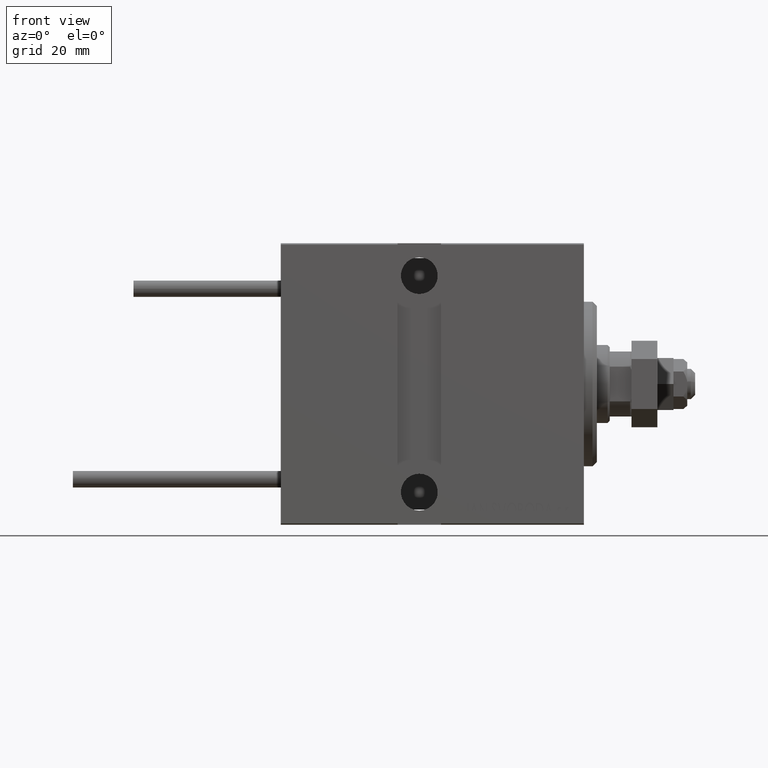
[diagram: clean part render]
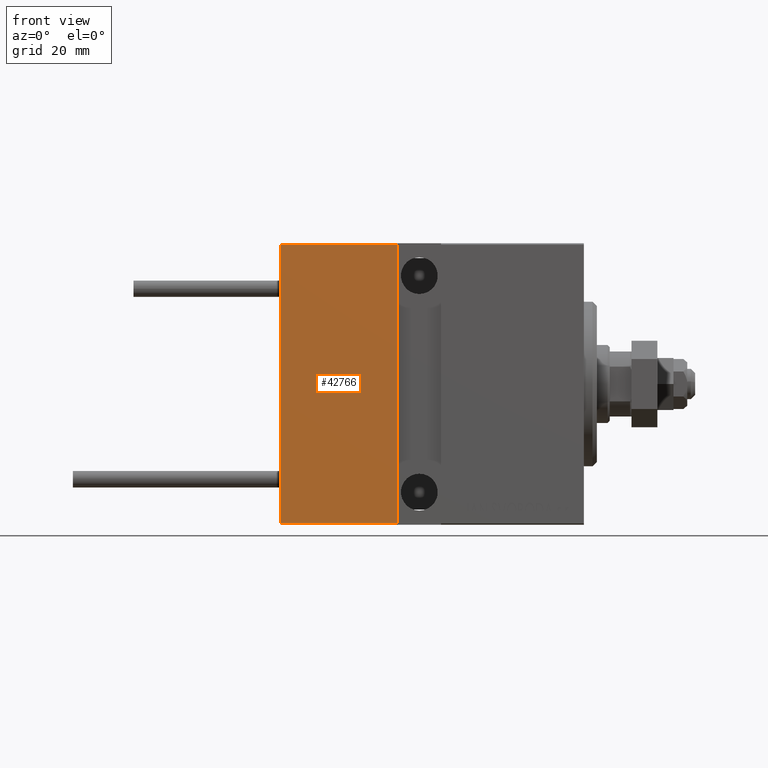
[diagram: same view with one face highlighted and labeled with its STEP entity id]
A machine part, front view. The second image highlights one B-rep face of the part: STEP entity #42766.
In plain terms, the highlighted planar face has unit normal (-0, 1, -0).
Its self-contained STEP definition (entity closure, byte-faithful):
#339 = LINE ( 'NONE', #38980, #1915 ) ;
#1082 = CARTESIAN_POINT ( 'NONE',  ( 43.00000000000000000, 22.50000000000000000, -32.19999999999999574 ) ) ;
#1087 = DIRECTION ( 'NONE',  ( -1.067522139062651164E-16, -0.000000000000000000, -1.000000000000000000 ) ) ;
#1915 = VECTOR ( 'NONE', #1087, 1000.000000000000000 ) ;
#1971 = CARTESIAN_POINT ( 'NONE',  ( 70.00000000000000000, 22.49999999999999645, 32.20000000000000284 ) ) ;
#2593 = VERTEX_POINT ( 'NONE', #36283 ) ;
#4032 = EDGE_CURVE ( 'NONE', #49351, #11637, #48903, .T. ) ;
#6252 = VECTOR ( 'NONE', #44382, 1000.000000000000000 ) ;
#6742 = LINE ( 'NONE', #1971, #6252 ) ;
#7818 = ORIENTED_EDGE ( 'NONE', *, *, #35333, .F. ) ;
#8009 = CARTESIAN_POINT ( 'NONE',  ( 70.00000000000000000, 22.50000000000000355, -32.19999999999999574 ) ) ;
#9793 = DIRECTION ( 'NONE',  ( 0.000000000000000000, -1.000000000000000000, -1.067522139062650425E-16 ) ) ;
#10392 = ORIENTED_EDGE ( 'NONE', *, *, #46942, .T. ) ;
#11637 = VERTEX_POINT ( 'NONE', #1082 ) ;
#12680 = ORIENTED_EDGE ( 'NONE', *, *, #4032, .T. ) ;
#13906 = EDGE_LOOP ( 'NONE', ( #7818, #12680, #40809, #10392 ) ) ;
#14565 = CARTESIAN_POINT ( 'NONE',  ( 70.00000000000000000, 22.50000000000000355, -32.50000000000000000 ) ) ;
#17373 = CARTESIAN_POINT ( 'NONE',  ( 70.00000000000000000, 22.50000000000000355, -32.50000000000000000 ) ) ;
#18344 = LINE ( 'NONE', #14565, #36429 ) ;
#23791 = VERTEX_POINT ( 'NONE', #40288 ) ;
#25200 = DIRECTION ( 'NONE',  ( 0.000000000000000000, 1.067522139062650425E-16, -1.000000000000000000 ) ) ;
#26448 = DIRECTION ( 'NONE',  ( -1.000000000000000000, 0.000000000000000000, 0.000000000000000000 ) ) ;
#28477 = PLANE ( 'NONE',  #44583 ) ;
#32264 = FACE_OUTER_BOUND ( 'NONE', #13906, .T. ) ;
#32587 = VECTOR ( 'NONE', #26448, 1000.000000000000000 ) ;
#35333 = EDGE_CURVE ( 'NONE', #49351, #23791, #18344, .T. ) ;
#36283 = CARTESIAN_POINT ( 'NONE',  ( 43.00000000000000711, 22.50000000000000000, 32.20000000000000284 ) ) ;
#36429 = VECTOR ( 'NONE', #38036, 1000.000000000000000 ) ;
#38036 = DIRECTION ( 'NONE',  ( 0.000000000000000000, -1.067522139062650425E-16, 1.000000000000000000 ) ) ;
#38980 = CARTESIAN_POINT ( 'NONE',  ( 43.00000000000000000, 22.50000000000000000, -32.50000000000000000 ) ) ;
#40288 = CARTESIAN_POINT ( 'NONE',  ( 70.00000000000000000, 22.49999999999999645, 32.20000000000000284 ) ) ;
#40809 = ORIENTED_EDGE ( 'NONE', *, *, #44173, .F. ) ;
#42766 = ADVANCED_FACE ( 'NONE', ( #32264 ), #28477, .F. ) ;
#44173 = EDGE_CURVE ( 'NONE', #2593, #11637, #339, .T. ) ;
#44382 = DIRECTION ( 'NONE',  ( 1.000000000000000000, 0.000000000000000000, 0.000000000000000000 ) ) ;
#44583 = AXIS2_PLACEMENT_3D ( 'NONE', #17373, #9793, #25200 ) ;
#45608 = CARTESIAN_POINT ( 'NONE',  ( 70.00000000000000000, 22.50000000000000355, -32.19999999999999574 ) ) ;
#46942 = EDGE_CURVE ( 'NONE', #2593, #23791, #6742, .T. ) ;
#48903 = LINE ( 'NONE', #45608, #32587 ) ;
#49351 = VERTEX_POINT ( 'NONE', #8009 ) ;